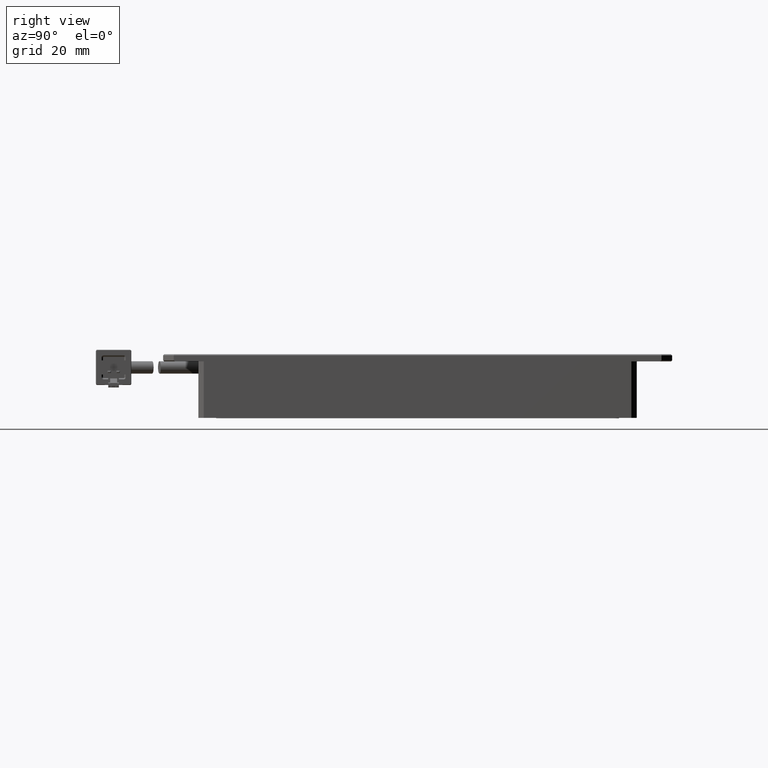
[diagram: clean part render]
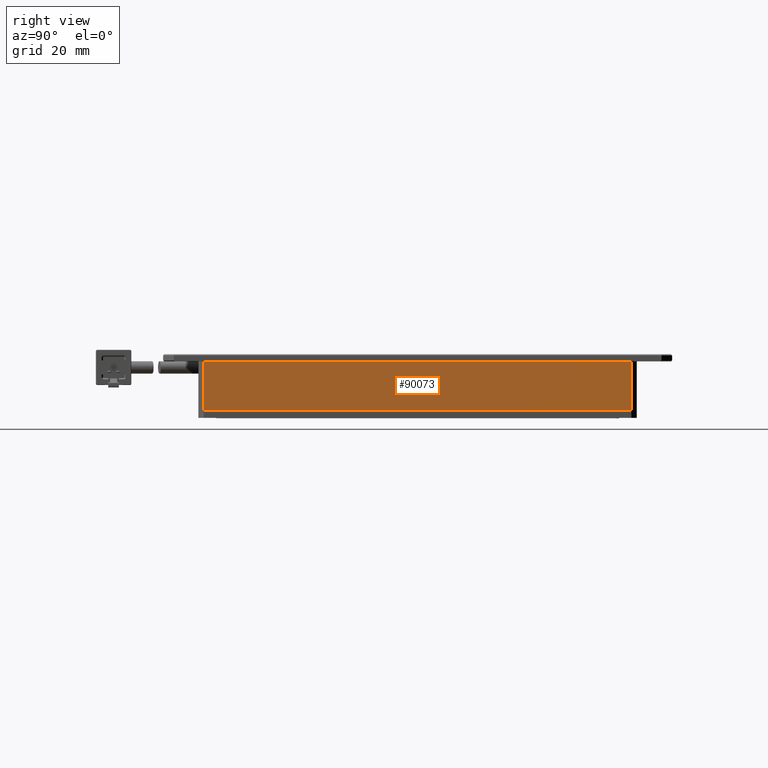
[diagram: same view with one face highlighted and labeled with its STEP entity id]
A machine part, right view. The second image highlights one B-rep face of the part: STEP entity #90073.
In plain terms, the highlighted planar face has unit normal (-1, 0, 0).
Its self-contained STEP definition (entity closure, byte-faithful):
#981 = VECTOR ( 'NONE', #61116, 1000.000000000000000 ) ;
#2378 = DIRECTION ( 'NONE',  ( -1.000000000000000000, 0.0000000000000000000, 0.0000000000000000000 ) ) ;
#2673 = VERTEX_POINT ( 'NONE', #28019 ) ;
#3217 = ORIENTED_EDGE ( 'NONE', *, *, #101402, .F. ) ;
#4824 = EDGE_CURVE ( 'NONE', #53019, #2673, #67579, .T. ) ;
#6704 = AXIS2_PLACEMENT_3D ( 'NONE', #49117, #2378, #56948 ) ;
#6986 = ORIENTED_EDGE ( 'NONE', *, *, #85557, .F. ) ;
#9876 = PLANE ( 'NONE',  #6704 ) ;
#9996 = VERTEX_POINT ( 'NONE', #33670 ) ;
#10266 = CARTESIAN_POINT ( 'NONE',  ( 62.64490263459336500, 71.38965253913710300, 13.99999999998362900 ) ) ;
#13772 = LINE ( 'NONE', #31786, #52886 ) ;
#20114 = VECTOR ( 'NONE', #34355, 1000.000000000000000 ) ;
#26035 = VECTOR ( 'NONE', #86376, 1000.000000000000000 ) ;
#26524 = CARTESIAN_POINT ( 'NONE',  ( 62.64490263459336500, 72.88965253913710300, -1.637058544279312900E-011 ) ) ;
#28019 = CARTESIAN_POINT ( 'NONE',  ( 62.64490263459336500, 71.38965253913713100, -1.637058544279312900E-011 ) ) ;
#30376 = EDGE_LOOP ( 'NONE', ( #36642, #3217, #93266, #6986 ) ) ;
#31786 = CARTESIAN_POINT ( 'NONE',  ( 62.64490263459336500, -51.11034746086289000, 13.99999999998362900 ) ) ;
#33670 = CARTESIAN_POINT ( 'NONE',  ( 62.64490263459336500, -49.61034746086287600, -1.637232016626910500E-011 ) ) ;
#34230 = EDGE_CURVE ( 'NONE', #87227, #9996, #42445, .T. ) ;
#34355 = DIRECTION ( 'NONE',  ( -0.0000000000000000000, -1.000000000000000000, -0.0000000000000000000 ) ) ;
#36642 = ORIENTED_EDGE ( 'NONE', *, *, #4824, .F. ) ;
#39632 = DIRECTION ( 'NONE',  ( 0.0000000000000000000, 1.000000000000000000, -0.0000000000000000000 ) ) ;
#42445 = LINE ( 'NONE', #99796, #981 ) ;
#47052 = CARTESIAN_POINT ( 'NONE',  ( 62.64490263459336500, -49.61034746086289700, 13.99999999998362900 ) ) ;
#47434 = CARTESIAN_POINT ( 'NONE',  ( 62.64490263459336500, 71.38965253913710300, 13.99999999998362900 ) ) ;
#49117 = CARTESIAN_POINT ( 'NONE',  ( 62.64490263459336500, -51.11034746086289000, 13.99999999998362900 ) ) ;
#52886 = VECTOR ( 'NONE', #39632, 1000.000000000000000 ) ;
#53019 = VERTEX_POINT ( 'NONE', #10266 ) ;
#56948 = DIRECTION ( 'NONE',  ( 0.0000000000000000000, 0.0000000000000000000, 1.000000000000000000 ) ) ;
#61116 = DIRECTION ( 'NONE',  ( -0.0000000000000000000, -0.0000000000000000000, -1.000000000000000000 ) ) ;
#61657 = LINE ( 'NONE', #26524, #20114 ) ;
#67579 = LINE ( 'NONE', #47434, #26035 ) ;
#78185 = FACE_OUTER_BOUND ( 'NONE', #30376, .T. ) ;
#85557 = EDGE_CURVE ( 'NONE', #2673, #9996, #61657, .T. ) ;
#86376 = DIRECTION ( 'NONE',  ( -0.0000000000000000000, -0.0000000000000000000, -1.000000000000000000 ) ) ;
#87227 = VERTEX_POINT ( 'NONE', #47052 ) ;
#90073 = ADVANCED_FACE ( 'NONE', ( #78185 ), #9876, .F. ) ;
#93266 = ORIENTED_EDGE ( 'NONE', *, *, #34230, .T. ) ;
#99796 = CARTESIAN_POINT ( 'NONE',  ( 62.64490263459336500, -49.61034746086289000, 13.99999999998362900 ) ) ;
#101402 = EDGE_CURVE ( 'NONE', #87227, #53019, #13772, .T. ) ;